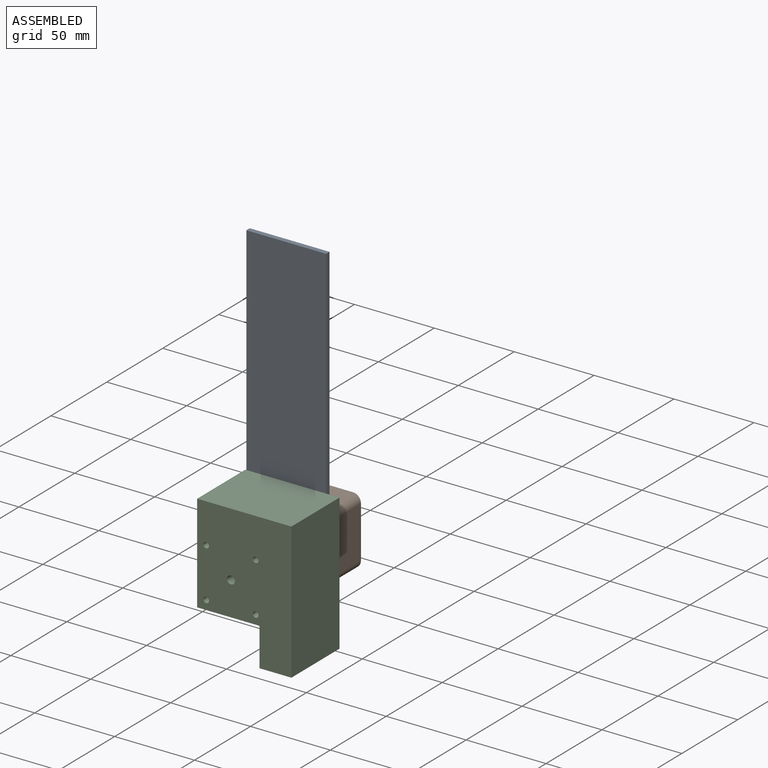
[diagram: assembled view]
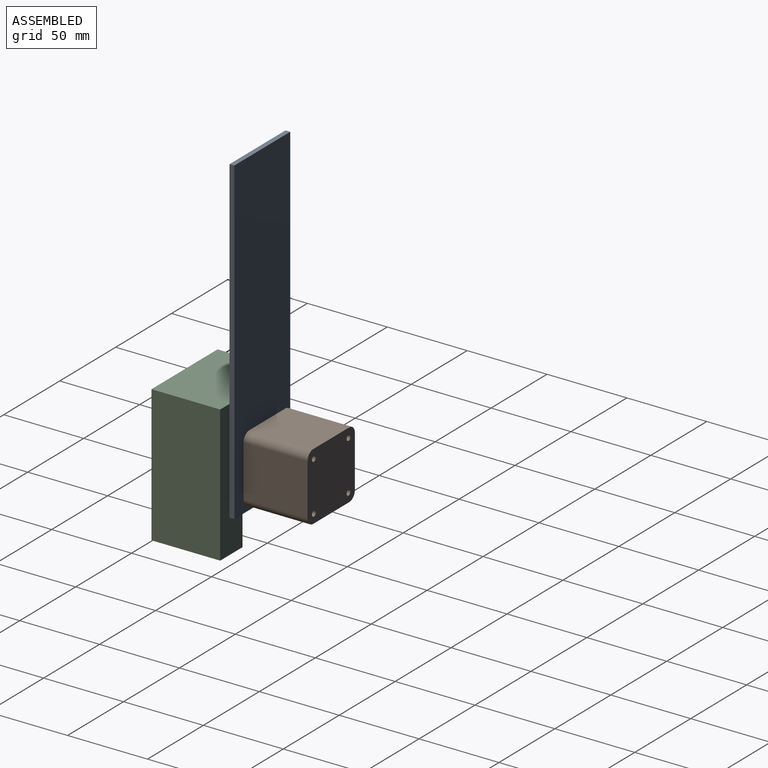
[diagram: assembled view, second angle]
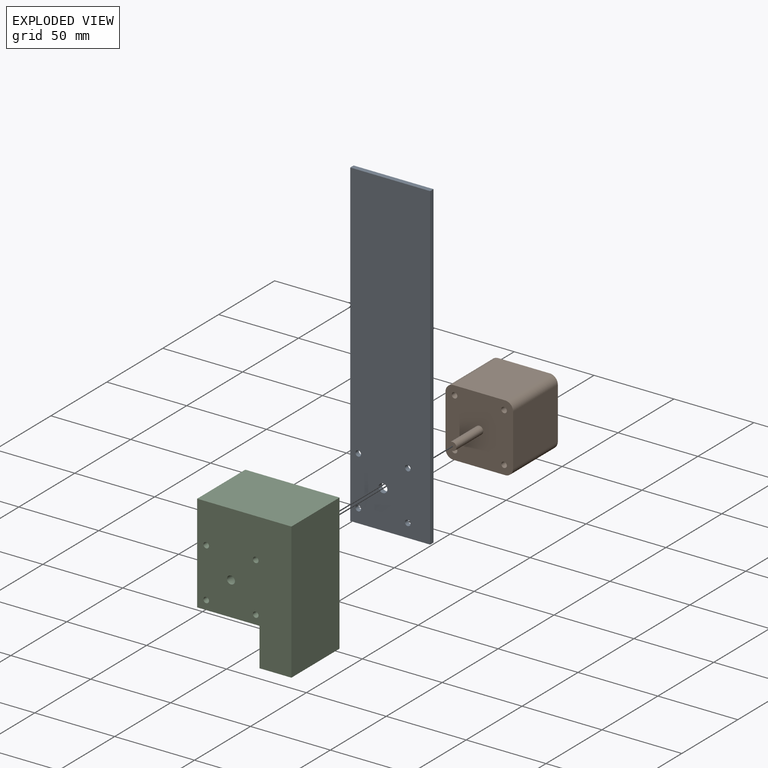
[diagram: exploded view]
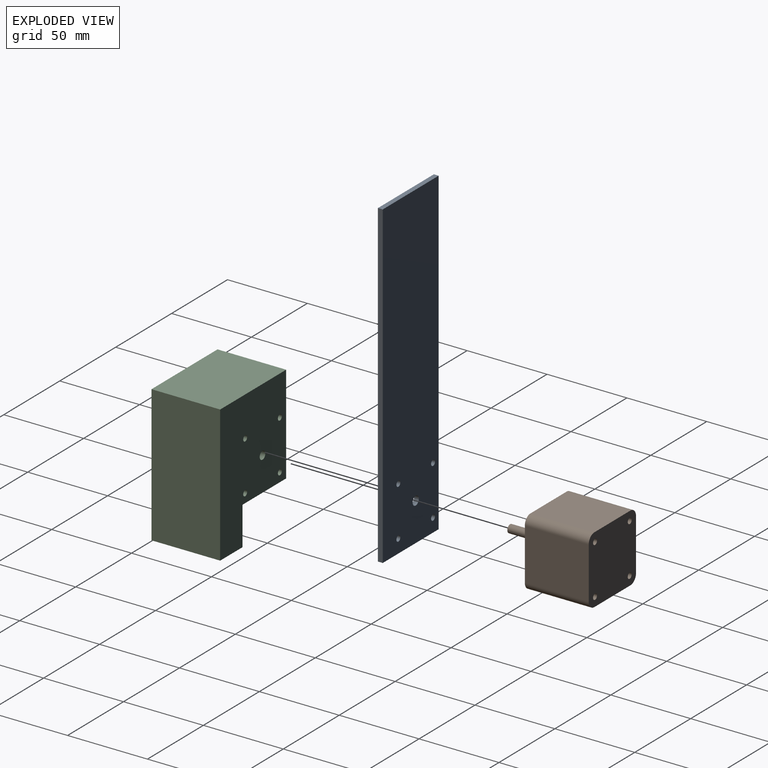
[diagram: exploded view, second angle]
ASSEMBLY  parts=3 mates=2
PART A: 11 faces, bbox 50x3x200 mm
  f0: plane 200x3mm, normal (1,0,0), area 600mm2, adj f1,f7,f9,f10
  f1: plane 50x3mm, normal (0,0,1), area 150mm2, adj f0,f2,f9,f10
  f2: plane 200x3mm, normal (-1,0,0), area 600mm2, adj f1,f7,f9,f10
  f3: cylinder r=1.75mm len=3.5mm, axis (0,1,0), area 33mm2, adj f9,f10
  f4: cylinder r=1.75mm len=3.5mm, axis (0,1,0), area 33mm2, adj f9,f10
  f5: cylinder r=1.75mm len=3.5mm, axis (0,1,0), area 33mm2, adj f9,f10
  f6: cylinder r=1.75mm len=3.5mm, axis (0,1,0), area 33mm2, adj f9,f10
  f7: plane 50x3mm, normal (0,0,-1), area 150mm2, adj f0,f2,f9,f10
  f8: cylinder r=2.75mm len=5.5mm, axis (0,1,0), area 51.8mm2, adj f9,f10
  f9: plane 200x50mm, normal (0,-1,0), area 9937.8mm2, adj f0,f1,f2,f3,f4,f5,f6,f7
  f10: plane 200x50mm, normal (0,1,0), area 9937.8mm2, adj f0,f1,f2,f3,f4,f5,f6,f7
PART B: 16 faces, bbox 42.3x64x42.3 mm
  f0: plane 40x32.3mm, normal (1,0,0), area 1292mm2, adj f4,f5,f6,f9
  f1: plane 40x32.3mm, normal (0,0,1), area 1292mm2, adj f4,f5,f6,f7
  f2: plane 40x32.3mm, normal (-1,0,0), area 1292mm2, adj f4,f5,f7,f8
  f3: plane 40x32.3mm, normal (0,0,-1), area 1292mm2, adj f4,f5,f8,f9
  f4: plane 42.3x42.3mm, normal (0,-1,0), area 1709.7mm2, adj f0,f1,f2,f3,f6,f7,f8,f9
  f5: plane 42.3x42.3mm, normal (0,1,0), area 1729.3mm2, adj f0,f1,f2,f3,f6,f7,f8,f9
  f6: cylinder r=5mm len=40mm, axis (0,-1,0), area 314.2mm2, adj f0,f1,f4,f5
  f7: cylinder r=5mm len=40mm, axis (0,1,0), area 314.2mm2, adj f1,f2,f4,f5
  f8: cylinder r=5mm len=40mm, axis (0,-1,0), area 314.2mm2, adj f2,f3,f4,f5
  f9: cylinder r=5mm len=40mm, axis (0,1,0), area 314.2mm2, adj f0,f3,f4,f5
  f10: cylinder r=1.75mm len=40mm, axis (0,-1,0), area 439.8mm2, adj f4,f5
  f11: cylinder r=1.75mm len=40mm, axis (0,-1,0), area 439.8mm2, adj f4,f5
  f12: cylinder r=1.75mm len=40mm, axis (0,-1,0), area 439.8mm2, adj f4,f5
  f13: cylinder r=1.75mm len=40mm, axis (0,-1,0), area 439.8mm2, adj f4,f5
  f14: cylinder r=2.5mm len=24mm, axis (0,1,0), area 377mm2, adj f4,f15
  f15: plane 5x5mm, normal (0,-1,0), area 19.6mm2, adj f14
PART C: 13 faces, bbox 59x43x85.5 mm
  f0: plane 43x39mm, normal (0,0,-1), area 1677mm2, adj f1,f5,f6,f7
  f1: plane 43x24mm, normal (-1,0,0), area 1032mm2, adj f0,f2,f6,f7
  f2: plane 43x20mm, normal (0,0,-1), area 860mm2, adj f1,f3,f6,f7
  f3: plane 85.5x43mm, normal (1,0,0), area 3676.5mm2, adj f2,f4,f6,f7
  f4: plane 59x43mm, normal (0,0,1), area 2537mm2, adj f3,f5,f6,f7
  f5: plane 61.5x43mm, normal (-1,0,0), area 2644.5mm2, adj f0,f4,f6,f7
  f6: plane 85.5x59mm, normal (0,-1,0), area 4050.4mm2, adj f0,f1,f2,f3,f4,f5,f8,f9
  f7: plane 85.5x59mm, normal (0,1,0), area 4050.4mm2, adj f0,f1,f2,f3,f4,f5,f8,f9
  f8: cylinder r=1.75mm len=43mm, axis (0,1,0), area 472.8mm2, adj f6,f7
  f9: cylinder r=1.75mm len=43mm, axis (0,1,0), area 472.8mm2, adj f6,f7
  f10: cylinder r=1.75mm len=43mm, axis (0,1,0), area 472.8mm2, adj f6,f7
  f11: cylinder r=1.75mm len=43mm, axis (0,1,0), area 472.8mm2, adj f6,f7
  f12: cylinder r=2.5mm len=43mm, axis (0,1,0), area 675.4mm2, adj f6,f7
PLACE A at identity fixed
PLACE B t=(0,40,0)mm
PLACE C t=(8.35,-3,9.6)mm
MATE fastened B.f14 <-> A.f8  axis (0,-1,0) through (0,0,0)mm
MATE fastened C.f12 <-> A.f8  axis (0,1,0) through (0,-3,0)mm
